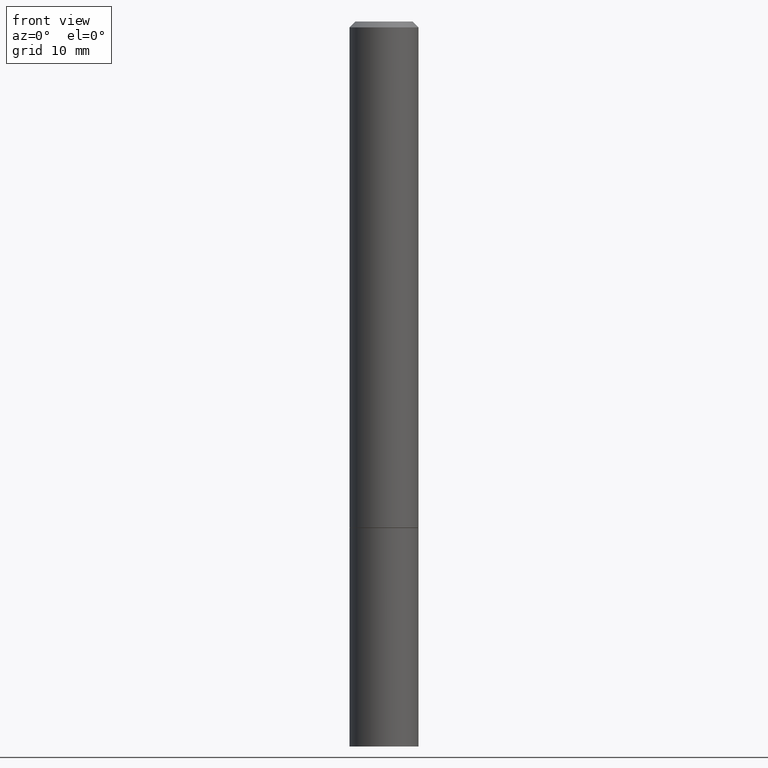
[diagram: clean part render]
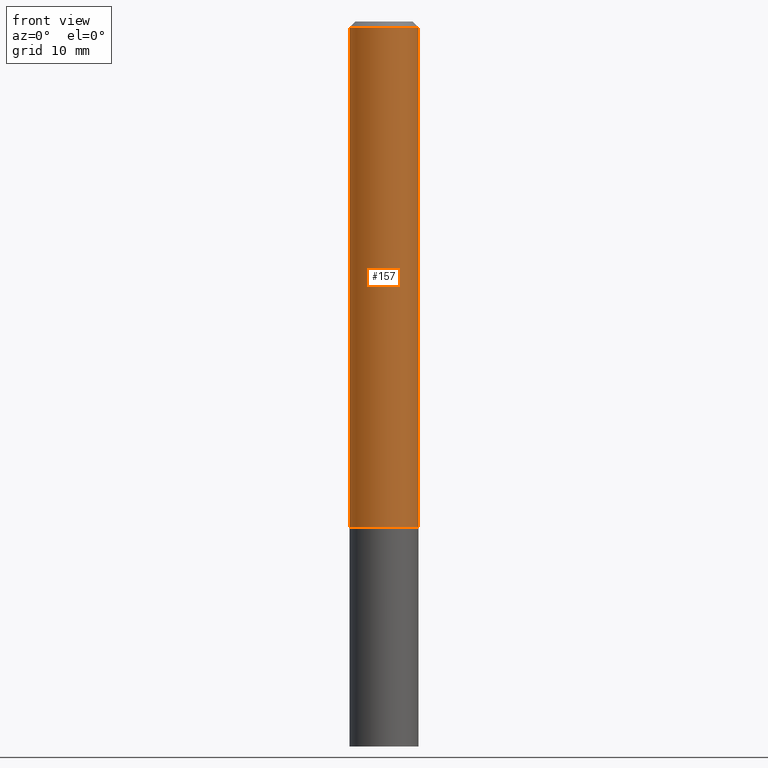
[diagram: same view with one face highlighted and labeled with its STEP entity id]
A machine part, front view. The second image highlights one B-rep face of the part: STEP entity #157.
In plain terms, the highlighted cylindrical surface (edge-blend (fillet) strip) has radius 2.9997 mm, axis along (-0, 0, 1).
Its self-contained STEP definition (entity closure, byte-faithful):
#4 = CIRCLE ( 'NONE', #222, 0.1181000000000000383 ) ;
#17 = AXIS2_PLACEMENT_3D ( 'NONE', #261, #196, #220 ) ;
#25 = VERTEX_POINT ( 'NONE', #277 ) ;
#27 = DIRECTION ( 'NONE',  ( -2.445468806185136877E-29, 3.491481338843145188E-15, 1.000000000000000000 ) ) ;
#29 = EDGE_CURVE ( 'NONE', #260, #25, #331, .T. ) ;
#33 = FACE_OUTER_BOUND ( 'NONE', #65, .T. ) ;
#47 = ORIENTED_EDGE ( 'NONE', *, *, #29, .F. ) ;
#56 = VECTOR ( 'NONE', #27, 39.37007874015748143 ) ;
#61 = AXIS2_PLACEMENT_3D ( 'NONE', #341, #193, #136 ) ;
#65 = EDGE_LOOP ( 'NONE', ( #47, #284, #71, #123 ) ) ;
#71 = ORIENTED_EDGE ( 'NONE', *, *, #178, .T. ) ;
#84 = CYLINDRICAL_SURFACE ( 'NONE', #17, 0.1180999999999999273 ) ;
#104 = VECTOR ( 'NONE', #259, 39.37007874015748143 ) ;
#123 = ORIENTED_EDGE ( 'NONE', *, *, #168, .F. ) ;
#136 = DIRECTION ( 'NONE',  ( 1.000000000000000000, -6.982962677686266711E-15, 0.000000000000000000 ) ) ;
#157 = ADVANCED_FACE ( 'NONE', ( #33 ), #84, .T. ) ;
#165 = CIRCLE ( 'NONE', #61, 0.1180999999999998301 ) ;
#168 = EDGE_CURVE ( 'NONE', #25, #302, #165, .T. ) ;
#178 = EDGE_CURVE ( 'NONE', #200, #302, #253, .T. ) ;
#193 = DIRECTION ( 'NONE',  ( -2.445468806185136597E-29, 3.491481338843145583E-15, 1.000000000000000000 ) ) ;
#196 = DIRECTION ( 'NONE',  ( -2.445468806185136597E-29, 3.491481338843145583E-15, 1.000000000000000000 ) ) ;
#200 = VERTEX_POINT ( 'NONE', #255 ) ;
#203 = CARTESIAN_POINT ( 'NONE',  ( -0.1181000000000000383, -2.218164663425320121E-15, -1.731300000000000283 ) ) ;
#220 = DIRECTION ( 'NONE',  ( 1.000000000000000000, -6.982962677686266711E-15, 4.876176775795935793E-29 ) ) ;
#222 = AXIS2_PLACEMENT_3D ( 'NONE', #263, #237, #355 ) ;
#233 = CARTESIAN_POINT ( 'NONE',  ( 0.1180999999999998301, -8.800544403136798514E-16, -0.02000000000000007674 ) ) ;
#237 = DIRECTION ( 'NONE',  ( -2.445468806185136597E-29, 3.491481338843145583E-15, 1.000000000000000000 ) ) ;
#253 = LINE ( 'NONE', #315, #104 ) ;
#255 = CARTESIAN_POINT ( 'NONE',  ( 0.1181000000000000383, -6.869489534173886334E-15, -1.731300000000000283 ) ) ;
#259 = DIRECTION ( 'NONE',  ( -2.445468806185136877E-29, 3.491481338843145188E-15, 1.000000000000000000 ) ) ;
#260 = VERTEX_POINT ( 'NONE', #203 ) ;
#261 = CARTESIAN_POINT ( 'NONE',  ( 0.000000000000000000, 0.000000000000000000, 0.000000000000000000 ) ) ;
#263 = CARTESIAN_POINT ( 'NONE',  ( 4.233840144148327350E-29, -6.044801641939138860E-15, -1.731300000000000283 ) ) ;
#275 = EDGE_CURVE ( 'NONE', #260, #200, #4, .T. ) ;
#277 = CARTESIAN_POINT ( 'NONE',  ( -0.1180999999999998301, 7.548582654578836825E-16, -0.02000000000000007674 ) ) ;
#284 = ORIENTED_EDGE ( 'NONE', *, *, #275, .T. ) ;
#302 = VERTEX_POINT ( 'NONE', #233 ) ;
#315 = CARTESIAN_POINT ( 'NONE',  ( 0.1180999999999999273, -8.246878922347475723E-16, 5.758764772214996937E-30 ) ) ;
#331 = LINE ( 'NONE', #356, #56 ) ;
#341 = CARTESIAN_POINT ( 'NONE',  ( 4.890937612370292426E-31, -6.982962677686317493E-17, -0.02000000000000007674 ) ) ;
#355 = DIRECTION ( 'NONE',  ( 1.000000000000000000, -6.982962677686262766E-15, 0.000000000000000000 ) ) ;
#356 = CARTESIAN_POINT ( 'NONE',  ( -0.1180999999999999273, 8.391509709326778027E-16, -5.809262341591040281E-30 ) ) ;